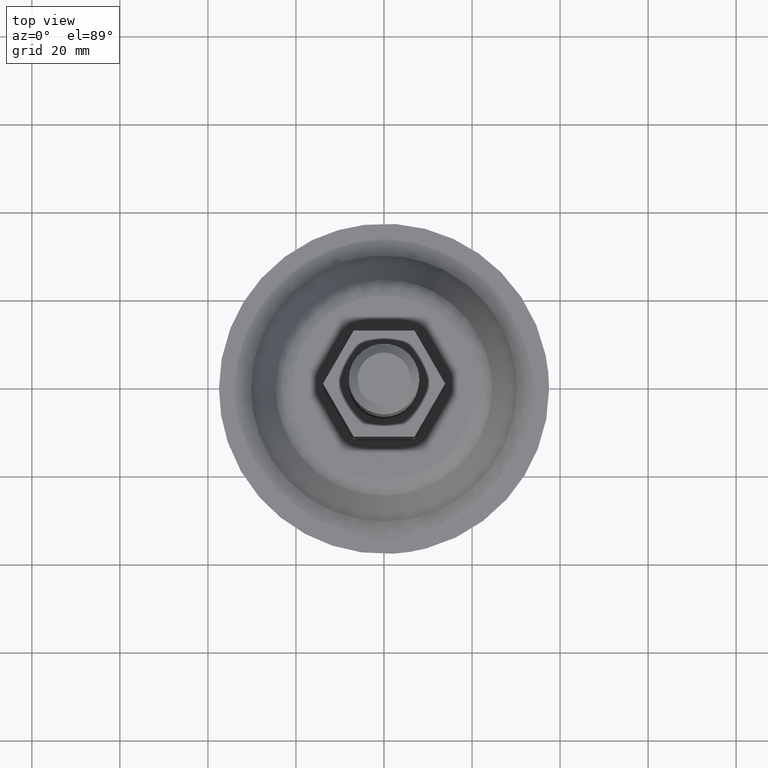
[diagram: clean part render]
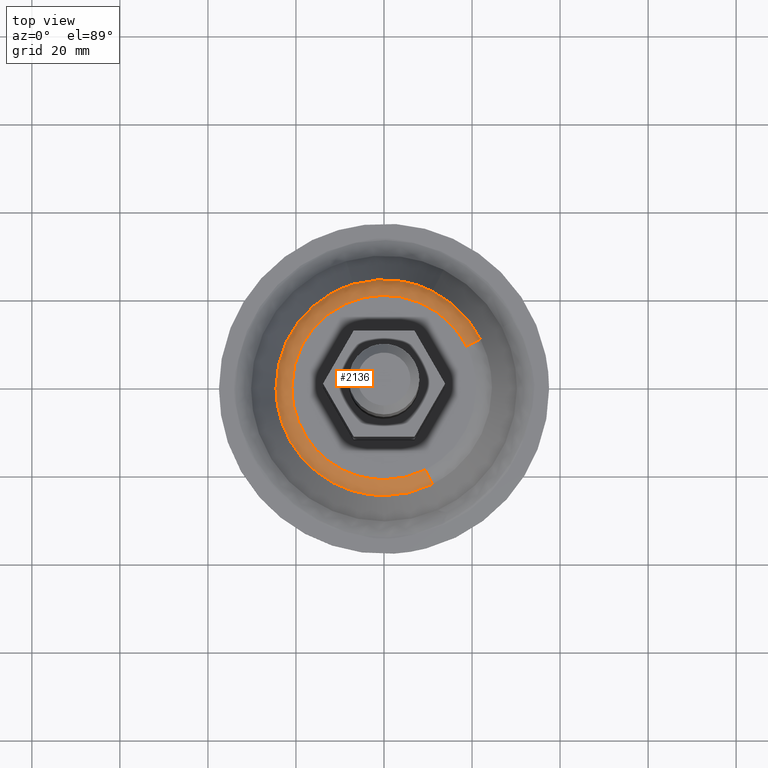
[diagram: same view with one face highlighted and labeled with its STEP entity id]
A machine part, top view. The second image highlights one B-rep face of the part: STEP entity #2136.
In plain terms, the highlighted face is a freeform B-spline surface patch.
Its self-contained STEP definition (entity closure, byte-faithful):
#1368=CARTESIAN_POINT('',(10.983786301863111,21.932624189639910,15.762949531470500));
#1369=VERTEX_POINT('',#1368);
#1375=CARTESIAN_POINT('',(21.925249910988700,10.998499066017921,15.762949531655090));
#1376=VERTEX_POINT('',#1375);
#1377=CARTESIAN_POINT('',(10.983786301863113,21.932624189639913,15.762949531470495));
#1378=CARTESIAN_POINT('',(18.270965896713584,18.283228534919964,15.762949531535902));
#1379=CARTESIAN_POINT('',(21.925249910988700,10.998499066017919,15.762949531655089));
#1387=(BOUNDED_CURVE()B_SPLINE_CURVE(2,(#1377,#1378,#1379),.UNSPECIFIED.,.F.,.U.)B_SPLINE_CURVE_WITH_KNOTS((3,3),(0.326127052925299,0.423769062115367),.UNSPECIFIED.)CURVE()GEOMETRIC_REPRESENTATION_ITEM()RATIONAL_B_SPLINE_CURVE((0.875940413896937,0.831213953431735,0.875845342762399))REPRESENTATION_ITEM(''));
#1388=EDGE_CURVE('',#1369,#1376,#1387,.T.);
#1405=CARTESIAN_POINT('',(10.998499066031020,-21.925249911040261,15.762949531549269));
#1406=VERTEX_POINT('',#1405);
#1420=CARTESIAN_POINT('',(-24.529238988803549,0.0,15.762949531433700));
#1421=VERTEX_POINT('',#1420);
#1422=CARTESIAN_POINT('',(10.998499066031023,-21.925249911040257,15.762949531549278));
#1423=CARTESIAN_POINT('',(5.807507917937206,-24.529238988803552,15.762949531433696));
#1424=CARTESIAN_POINT('',(0.0,-24.529238988803549,15.762949531433700));
#1425=CARTESIAN_POINT('',(-24.529238988803549,-24.529238988803549,15.762949531433700));
#1426=CARTESIAN_POINT('',(-24.529238988803549,0.0,15.762949531433700));
#1434=(BOUNDED_CURVE()B_SPLINE_CURVE(2,(#1422,#1423,#1424,#1425,#1426),.UNSPECIFIED.,.F.,.U.)B_SPLINE_CURVE_WITH_KNOTS((3,2,3),(0.673769062115511,0.750000000000000,1.0),.UNSPECIFIED.)CURVE()GEOMETRIC_REPRESENTATION_ITEM()RATIONAL_B_SPLINE_CURVE((0.875845342762531,0.910689900919374,1.0,0.707106781186547,1.0))REPRESENTATION_ITEM(''));
#1435=EDGE_CURVE('',#1406,#1421,#1434,.T.);
#1437=CARTESIAN_POINT('',(-6.966680266808467,23.519118423746960,15.762949531419910));
#1438=VERTEX_POINT('',#1437);
#1439=CARTESIAN_POINT('',(-24.529238988803549,0.0,15.762949531433700));
#1440=CARTESIAN_POINT('',(-24.529238988803559,18.316851524096521,15.762949531433707));
#1441=CARTESIAN_POINT('',(-6.966680266808467,23.519118423746963,15.762949531419915));
#1449=(BOUNDED_CURVE()B_SPLINE_CURVE(2,(#1439,#1440,#1441),.UNSPECIFIED.,.F.,.U.)B_SPLINE_CURVE_WITH_KNOTS((3,3),(0.0,0.201641517064427),.UNSPECIFIED.)CURVE()GEOMETRIC_REPRESENTATION_ITEM()RATIONAL_B_SPLINE_CURVE((1.0,0.763762268082290,0.908607213378551))REPRESENTATION_ITEM(''));
#1450=EDGE_CURVE('',#1421,#1438,#1449,.T.);
#1552=CARTESIAN_POINT('',(-6.966680266808467,23.519118423746963,15.762949531419913));
#1553=CARTESIAN_POINT('',(-3.556570389239274,24.529238988803552,15.762949531433705));
#1554=CARTESIAN_POINT('',(0.0,24.529238988803549,15.762949531433700));
#1555=CARTESIAN_POINT('',(5.798818660518855,24.529238988803552,15.762949531433707));
#1556=CARTESIAN_POINT('',(10.983786301863113,21.932624189639906,15.762949531470504));
#1564=(BOUNDED_CURVE()B_SPLINE_CURVE(2,(#1552,#1553,#1554,#1555,#1556),.UNSPECIFIED.,.F.,.U.)B_SPLINE_CURVE_WITH_KNOTS((3,2,3),(0.201641517064427,0.250000000000000,0.326127052925299),.UNSPECIFIED.)CURVE()GEOMETRIC_REPRESENTATION_ITEM()RATIONAL_B_SPLINE_CURVE((0.908607213378551,0.943344513104258,1.0,0.910811609719709,0.875940413896937))REPRESENTATION_ITEM(''));
#1565=EDGE_CURVE('',#1438,#1369,#1564,.T.);
#2039=CARTESIAN_POINT('',(9.294642899871809,-18.528652608911848,17.994512284984971));
#2040=CARTESIAN_POINT('',(-9.234009709040031,-27.823295508783666,17.994512284984971));
#2041=CARTESIAN_POINT('',(-18.528652608911848,-9.294642899871811,17.994512284984971));
#2042=CARTESIAN_POINT('',(-27.823295508783666,9.234009709040031,17.994512284984971));
#2043=CARTESIAN_POINT('',(-9.294642899871812,18.528652608911848,17.994512284984971));
#2044=CARTESIAN_POINT('',(9.234009709040029,27.823295508783666,17.994512284984971));
#2045=CARTESIAN_POINT('',(18.528652608911838,9.294642899871812,17.994512284984971));
#2046=CARTESIAN_POINT('',(10.545410726679879,-21.022028934068988,18.140782316382250));
#2047=CARTESIAN_POINT('',(-10.476618207389107,-31.567439660748860,18.140782316382243));
#2048=CARTESIAN_POINT('',(-21.022028934068988,-10.545410726679879,18.140782316382250));
#2049=CARTESIAN_POINT('',(-31.567439660748860,10.476618207389107,18.140782316382243));
#2050=CARTESIAN_POINT('',(-10.545410726679885,21.022028934068988,18.140782316382250));
#2051=CARTESIAN_POINT('',(10.476618207389103,31.567439660748860,18.140782316382243));
#2052=CARTESIAN_POINT('',(21.022028934068988,10.545410726679885,18.140782316382250));
#2053=CARTESIAN_POINT('',(11.037727055620422,-22.003449988207585,15.572285105118571));
#2054=CARTESIAN_POINT('',(-10.965722932587171,-33.041177043828014,15.572285105118565));
#2055=CARTESIAN_POINT('',(-22.003449988207585,-11.037727055620422,15.572285105118571));
#2056=CARTESIAN_POINT('',(-33.041177043828014,10.965722932587168,15.572285105118565));
#2057=CARTESIAN_POINT('',(-11.037727055620433,22.003449988207585,15.572285105118571));
#2058=CARTESIAN_POINT('',(10.965722932587166,33.041177043828014,15.572285105118565));
#2059=CARTESIAN_POINT('',(22.003449988207585,11.037727055620433,15.572285105118571));
#2067=(BOUNDED_SURFACE()B_SPLINE_SURFACE(2,2,((#2039,#2046,#2053),(#2040,#2047,#2054),(#2041,#2048,#2055),(#2042,#2049,#2056),(#2043,#2050,#2057),(#2044,#2051,#2058),(#2045,#2052,#2059)),.UNSPECIFIED.,.F.,.F.,.U.)B_SPLINE_SURFACE_WITH_KNOTS((3,2,2,3),(3,3),(0.0,40.786328124221413,81.572656248442826,122.358984372664200),(0.0,5.033719259317195),.UNSPECIFIED.)GEOMETRIC_REPRESENTATION_ITEM()RATIONAL_B_SPLINE_SURFACE(((0.923693141034011,0.756838403288658,0.922540802781788),(0.653149683760651,0.535165567227809,0.652334857568283),(0.923693141034011,0.756838403288658,0.922540802781788),(0.653149683760651,0.535165567227809,0.652334857568283),(0.923693141034011,0.756838403288658,0.922540802781788),(0.653149683760651,0.535165567227809,0.652334857568283),(0.923693141034011,0.756838403288658,0.922540802781788)))REPRESENTATION_ITEM('')SURFACE());
#2068=CARTESIAN_POINT('',(9.388559230759849,-18.715872611240460,18.000000000000099));
#2069=VERTEX_POINT('',#2068);
#2070=CARTESIAN_POINT('',(-20.938694608125552,0.0,18.0));
#2071=VERTEX_POINT('',#2070);
#2072=CARTESIAN_POINT('',(9.388559230759849,-18.715872611240453,18.000000000000096));
#2073=CARTESIAN_POINT('',(4.957415710615244,-20.938694608125541,18.000000000000004));
#2074=CARTESIAN_POINT('',(0.0,-20.938694608125552,18.0));
#2075=CARTESIAN_POINT('',(-20.938694608125555,-20.938694608125555,18.000000000000007));
#2076=CARTESIAN_POINT('',(-20.938694608125552,0.0,18.0));
#2084=(BOUNDED_CURVE()B_SPLINE_CURVE(2,(#2072,#2073,#2074,#2075,#2076),.UNSPECIFIED.,.F.,.U.)B_SPLINE_CURVE_WITH_KNOTS((3,2,3),(0.673769062112900,0.750000000000000,1.0),.UNSPECIFIED.)CURVE()GEOMETRIC_REPRESENTATION_ITEM()RATIONAL_B_SPLINE_CURVE((0.875845342760144,0.910689900916316,1.0,0.707106781186548,1.0))REPRESENTATION_ITEM(''));
#2085=EDGE_CURVE('',#2069,#2071,#2084,.T.);
#2086=ORIENTED_EDGE('',*,*,#2085,.T.);
#2087=CARTESIAN_POINT('',(18.715872611390200,9.388559230847733,18.000000000000099));
#2088=VERTEX_POINT('',#2087);
#2089=CARTESIAN_POINT('',(-20.938694608125552,0.0,18.0));
#2090=CARTESIAN_POINT('',(-20.938694608125555,20.938694608125555,18.000000000000007));
#2091=CARTESIAN_POINT('',(0.0,20.938694608125552,18.0));
#2092=CARTESIAN_POINT('',(12.921906578366499,20.938694608125545,17.999999999999996));
#2093=CARTESIAN_POINT('',(18.715872611390196,9.388559230847733,18.000000000000096));
#2101=(BOUNDED_CURVE()B_SPLINE_CURVE(2,(#2089,#2090,#2091,#2092,#2093),.UNSPECIFIED.,.F.,.U.)B_SPLINE_CURVE_WITH_KNOTS((3,2,3),(0.0,0.250000000000000,0.423769062112731),.UNSPECIFIED.)CURVE()GEOMETRIC_REPRESENTATION_ITEM()RATIONAL_B_SPLINE_CURVE((1.0,0.707106781186548,1.0,0.796416880270430,0.875845342759990))REPRESENTATION_ITEM(''));
#2102=EDGE_CURVE('',#2071,#2088,#2101,.T.);
#2103=ORIENTED_EDGE('',*,*,#2102,.T.);
#2104=CARTESIAN_POINT('',(18.715872611390196,9.388559230847733,18.000000000000103));
#2105=CARTESIAN_POINT('',(20.943466160952035,10.506000795652591,17.999999995698285));
#2106=CARTESIAN_POINT('',(21.925249910988700,10.998499066017919,15.762949531655099));
#2114=(BOUNDED_CURVE()B_SPLINE_CURVE(2,(#2104,#2105,#2106),.UNSPECIFIED.,.F.,.U.)B_SPLINE_CURVE_WITH_KNOTS((3,3),(-1.657824828910443,-0.347170207601308),.UNSPECIFIED.)CURVE()GEOMETRIC_REPRESENTATION_ITEM()RATIONAL_B_SPLINE_CURVE((0.909224137540618,0.771255055223473,0.908176502101244))REPRESENTATION_ITEM(''));
#2115=EDGE_CURVE('',#2088,#1376,#2114,.T.);
#2116=ORIENTED_EDGE('',*,*,#2115,.T.);
#2117=ORIENTED_EDGE('',*,*,#1388,.F.);
#2118=ORIENTED_EDGE('',*,*,#1565,.F.);
#2119=ORIENTED_EDGE('',*,*,#1450,.F.);
#2120=ORIENTED_EDGE('',*,*,#1435,.F.);
#2121=CARTESIAN_POINT('',(9.388559230759849,-18.715872611240457,18.000000000000103));
#2122=CARTESIAN_POINT('',(10.506000795678444,-20.943466161003563,17.999999995914166));
#2123=CARTESIAN_POINT('',(10.998499066031023,-21.925249911040257,15.762949531549276));
#2131=(BOUNDED_CURVE()B_SPLINE_CURVE(2,(#2121,#2122,#2123),.UNSPECIFIED.,.F.,.U.)B_SPLINE_CURVE_WITH_KNOTS((3,3),(-1.657824829017855,-0.347170207528303),.UNSPECIFIED.)CURVE()GEOMETRIC_REPRESENTATION_ITEM()RATIONAL_B_SPLINE_CURVE((0.909224137563232,0.771255055204567,0.908176502116497))REPRESENTATION_ITEM(''));
#2132=EDGE_CURVE('',#2069,#1406,#2131,.T.);
#2133=ORIENTED_EDGE('',*,*,#2132,.F.);
#2134=EDGE_LOOP('',(#2086,#2103,#2116,#2117,#2118,#2119,#2120,#2133));
#2135=FACE_OUTER_BOUND('',#2134,.T.);
#2136=ADVANCED_FACE('',(#2135),#2067,.T.);